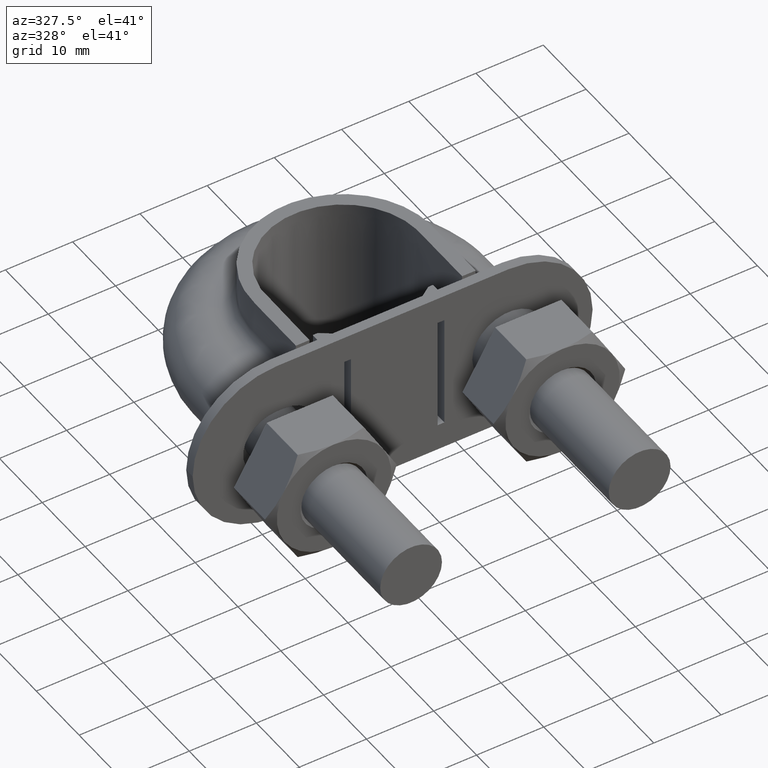
[diagram: clean part render]
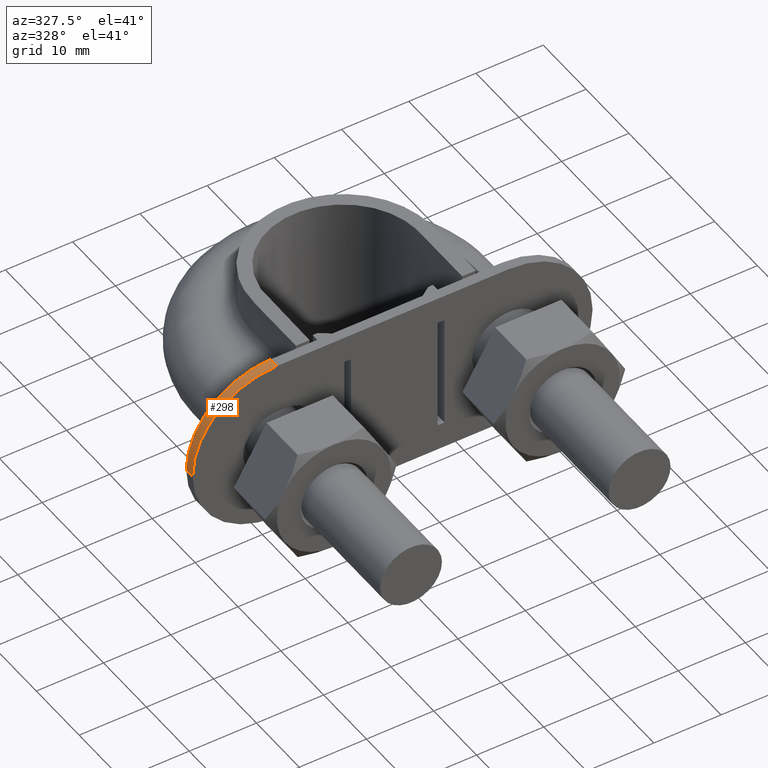
[diagram: same view with one face highlighted and labeled with its STEP entity id]
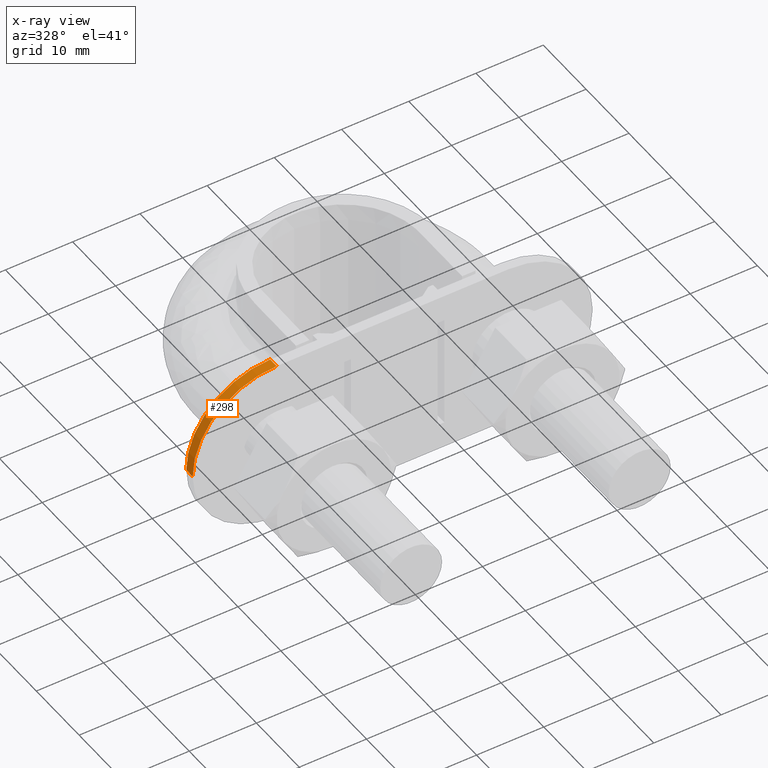
[diagram: x-ray of the same camera — body ghosted, the highlighted face saturated]
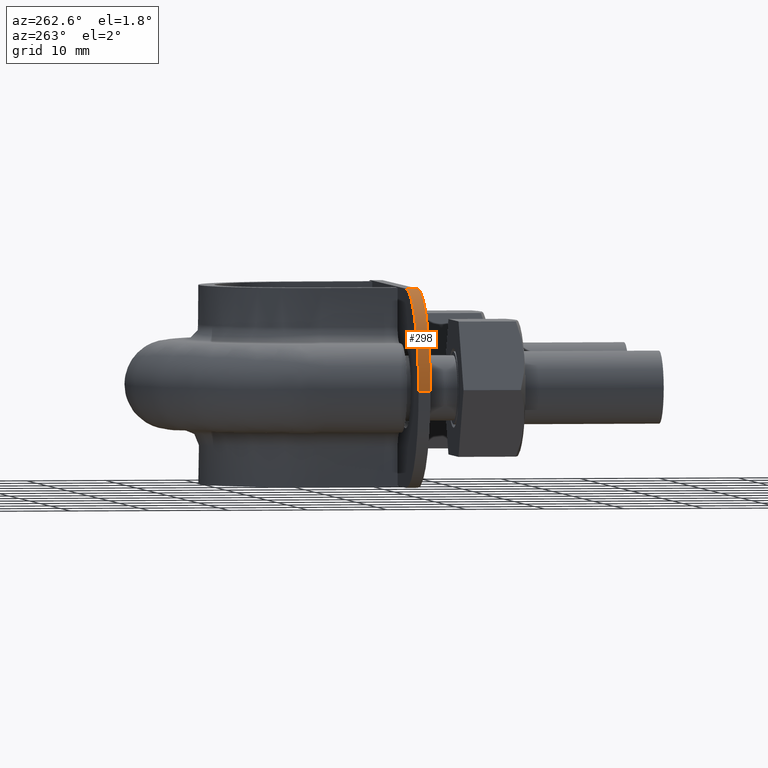
[diagram: same view with one face highlighted and labeled with its STEP entity id]
A machine part, auxiliary view. The second image highlights one B-rep face of the part: STEP entity #298.
The next image is the same camera in x-ray: the body ghosted, the highlighted face saturated — about 0% of this face is hidden behind the body in this view.
A second angle (auxiliary view) of the same face is appended — the face is thin or edge-on in the first view.
In plain terms, the highlighted cylindrical surface (partial cylindrical patch) has radius 12.5 mm, axis along (-0, -1, 0).
Its self-contained STEP definition (entity closure, byte-faithful):
#298 = ADVANCED_FACE( '', ( #457 ), #458, .T. );
#457 = FACE_OUTER_BOUND( '', #1621, .T. );
#458 = CYLINDRICAL_SURFACE( '', #1622, 12.5000000000000 );
#1621 = EDGE_LOOP( '', ( #2018, #2019, #2020, #2021 ) );
#1622 = AXIS2_PLACEMENT_3D( '', #2022, #2023, #2024 );
#2018 = ORIENTED_EDGE( '', *, *, #2696, .F. );
#2019 = ORIENTED_EDGE( '', *, *, #2697, .F. );
#2020 = ORIENTED_EDGE( '', *, *, #2681, .T. );
#2021 = ORIENTED_EDGE( '', *, *, #2698, .T. );
#2022 = CARTESIAN_POINT( '', ( -17.5000000000001, 30.6000000000012, 5.60887230754187E-008 ) );
#2023 = DIRECTION( '', ( -6.87201678141938E-014, -1.00000000000000, 3.91726205863274E-013 ) );
#2024 = DIRECTION( '', ( 3.20504273121468E-009, 3.91726205643022E-013, 1.00000000000000 ) );
#2681 = EDGE_CURVE( '', #2955, #2956, #2957, .T. );
#2696 = EDGE_CURVE( '', #2985, #2986, #2987, .T. );
#2697 = EDGE_CURVE( '', #2955, #2985, #2988, .T. );
#2698 = EDGE_CURVE( '', #2956, #2986, #2989, .T. );
#2955 = VERTEX_POINT( '', #3555 );
#2956 = VERTEX_POINT( '', #3556 );
#2957 = CIRCLE( '', #3557, 12.5000000000000 );
#2985 = VERTEX_POINT( '', #3593 );
#2986 = VERTEX_POINT( '', #3594 );
#2987 = CIRCLE( '', #3595, 12.5000000000000 );
#2988 = LINE( '', #3596, #3597 );
#2989 = LINE( '', #3598, #3599 );
#3555 = CARTESIAN_POINT( '', ( -30.0000000000001, 30.6000000000020, 9.61517572156022E-008 ) );
#3556 = CARTESIAN_POINT( '', ( -17.4999999599371, 30.6000000000061, 12.5000000560887 ) );
#3557 = AXIS2_PLACEMENT_3D( '', #4177, #4178, #4179 );
#3593 = CARTESIAN_POINT( '', ( -30.0000000000000, 32.1000000000020, 9.61511696262934E-008 ) );
#3594 = CARTESIAN_POINT( '', ( -17.4999999599370, 32.1000000000061, 12.5000000560881 ) );
#3595 = AXIS2_PLACEMENT_3D( '', #4206, #4207, #4208 );
#3596 = CARTESIAN_POINT( '', ( -30.0000000000001, 30.6000000000020, 9.61517572156022E-008 ) );
#3597 = VECTOR( '', #4209, 1000.00000000000 );
#3598 = CARTESIAN_POINT( '', ( -17.4999999599371, 30.6000000000061, 12.5000000560887 ) );
#3599 = VECTOR( '', #4210, 1000.00000000000 );
#4177 = CARTESIAN_POINT( '', ( -17.5000000000001, 30.6000000000012, 5.60887230754187E-008 ) );
#4178 = DIRECTION( '', ( 6.87201678141938E-014, 1.00000000000000, -3.91726205863274E-013 ) );
#4179 = DIRECTION( '', ( -1.00000000000000, 6.87201690696929E-014, 3.20504259243680E-009 ) );
#4206 = CARTESIAN_POINT( '', ( -17.5000000000000, 32.1000000000012, 5.60881354861099E-008 ) );
#4207 = DIRECTION( '', ( 6.87201678141938E-014, 1.00000000000000, -3.91726205863274E-013 ) );
#4208 = DIRECTION( '', ( -1.00000000000000, 6.87201690696929E-014, 3.20504259243680E-009 ) );
#4209 = DIRECTION( '', ( 6.87201678141938E-014, 1.00000000000000, -3.91726205863273E-013 ) );
#4210 = DIRECTION( '', ( 6.87201678141938E-014, 1.00000000000000, -3.91726205863273E-013 ) );